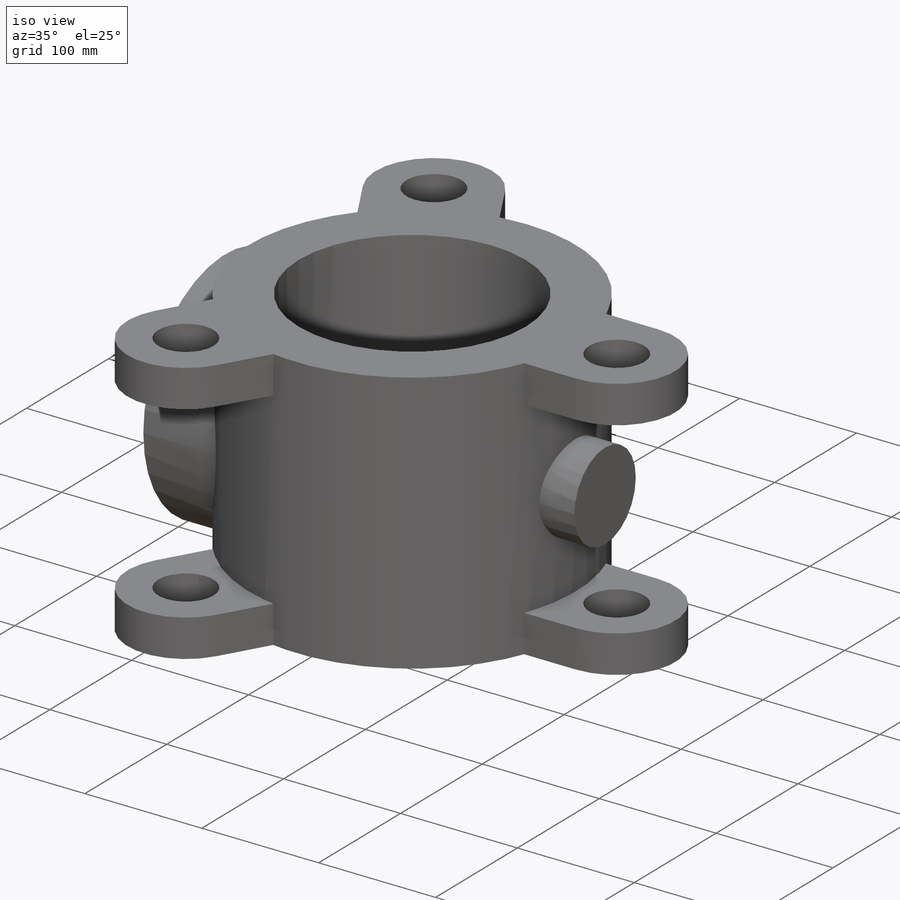
[diagram: iso view]
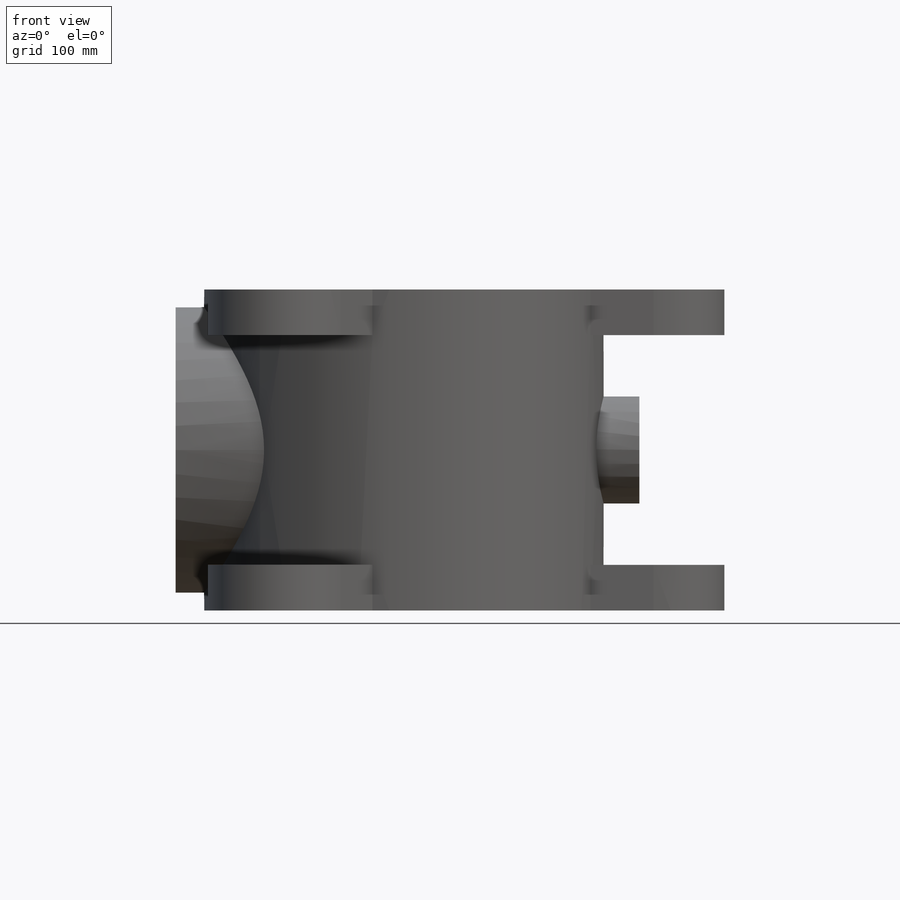
[diagram: front view]
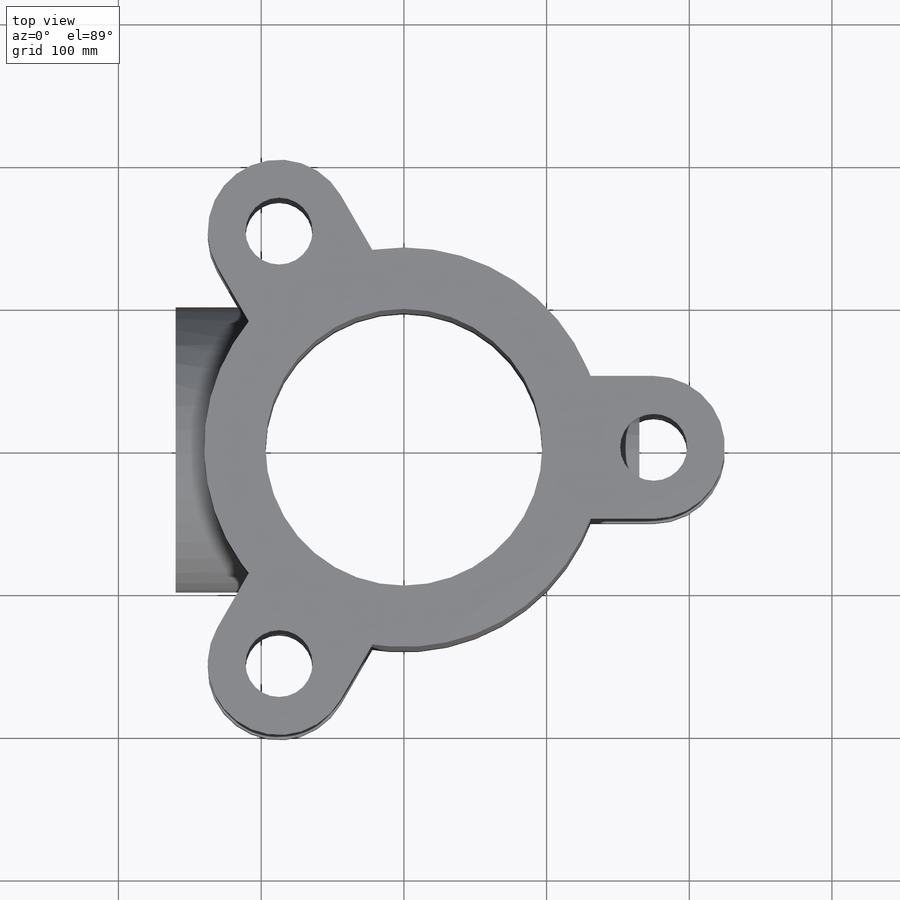
[diagram: top view]
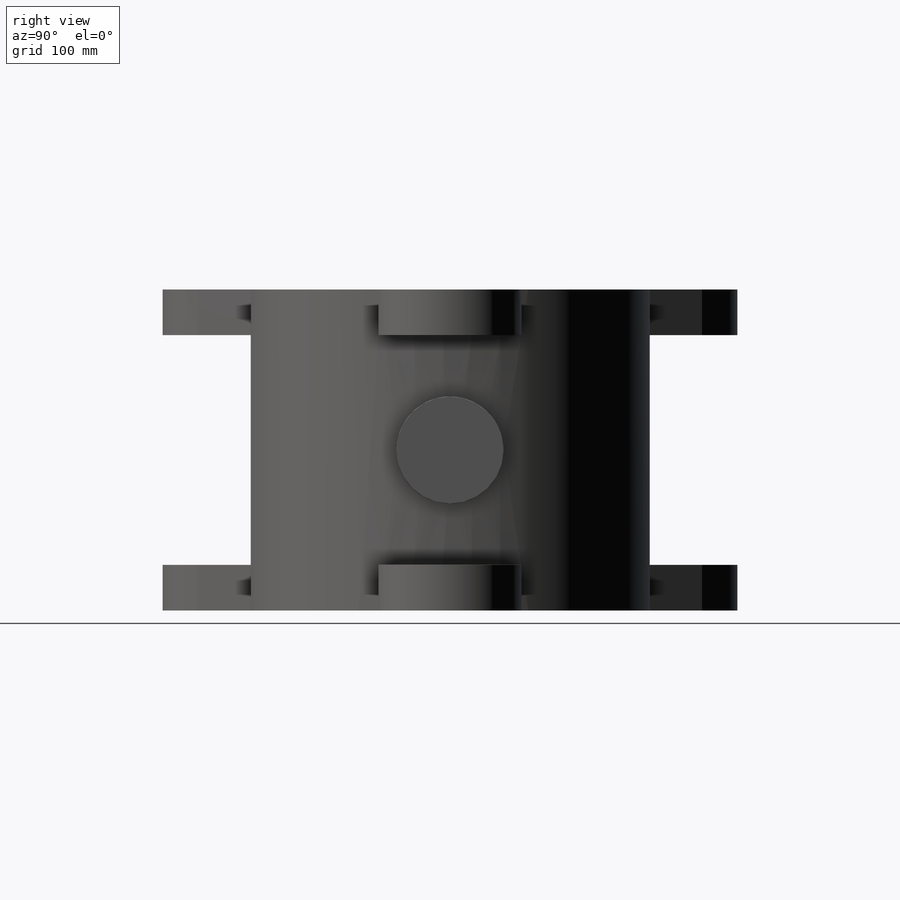
[diagram: right view]
SOLIDWORKS PART (.sldprt)
format: sldprt  version: not decoded by parser v0  size: 267,776 bytes
history: native  units: mm
features: sketch x8, extrude x5, cut_extrude x3, plane x2, material x1, pattern_circular x1, mirror x1 (+12 scaffold rows collapsed)
feature tree (33):
  scaffold x12  (default folders/planes/origin — collapsed)
  material  "Material <not specified>"
  sketch  "Sketch1"  dims[D1=194.0mm D2=280.0mm]
  extrude  "Boss-Extrude1"  Depth=225mm
  sketch  "Sketch2"  dims[D2=100.0mm D3=47.0mm D1=175.0mm]
  extrude  "Boss-Extrude2"  Depth=32mm
  pattern_circular  "CirPattern1"  Count=3 Angle=360deg
  mirror  "Mirror1"
  plane  "Plane1"  Offset=160mm
  sketch  "Sketch3"  dims[D1=56.2mm]
  cut_extrude  "Cut-Extrude1"  Depth=310mm
  sketch  "Sketch4"  dims[D1=200.0mm]
  extrude  "Boss-Extrude3"  [1 undecoded]
  sketch  "Sketch5"  dims[D1=100.0mm]
  cut_extrude  "Cut-Extrude2"  Depth=25mm
  sketch  "Sketch6"  dims[D1=20.3mm D2=75.0mm]
  cut_extrude  "Cut-Extrude3"  Depth=13mm
  plane  "Plane2"  Offset=165mm
  sketch  "Sketch7"  dims[D1=75.0mm]
  extrude  "Boss-Extrude4"  [1 undecoded]
  sketch  "Sketch8"
  extrude  "Boss-Extrude5"  Depth=10mm
decode coverage: 14 of 18 modeling features carry decoded parameters
note: 2 parameter values undecoded
note: suppression state not decoded; provenance and decode notes live in map.json
